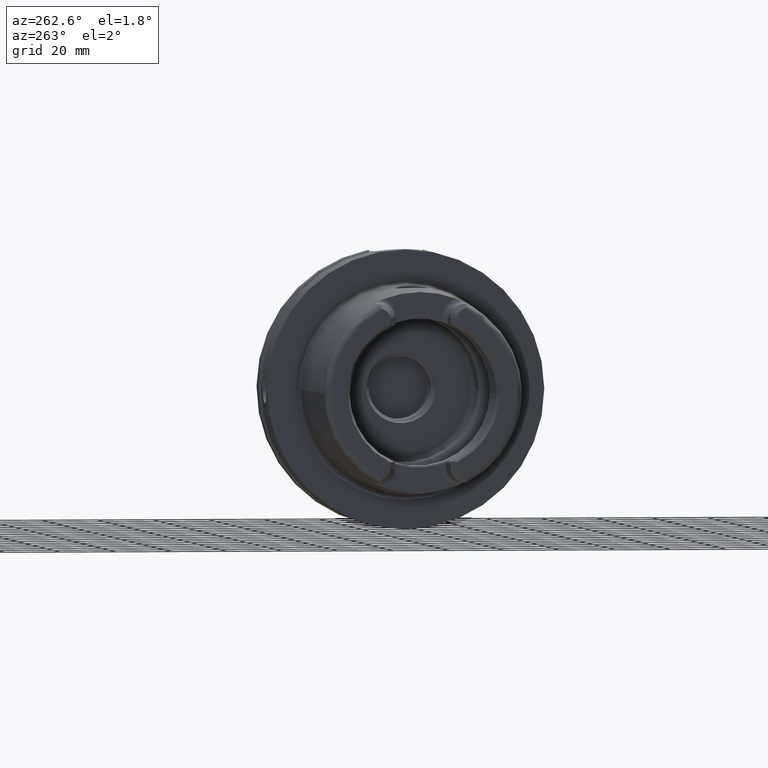
[diagram: clean part render]
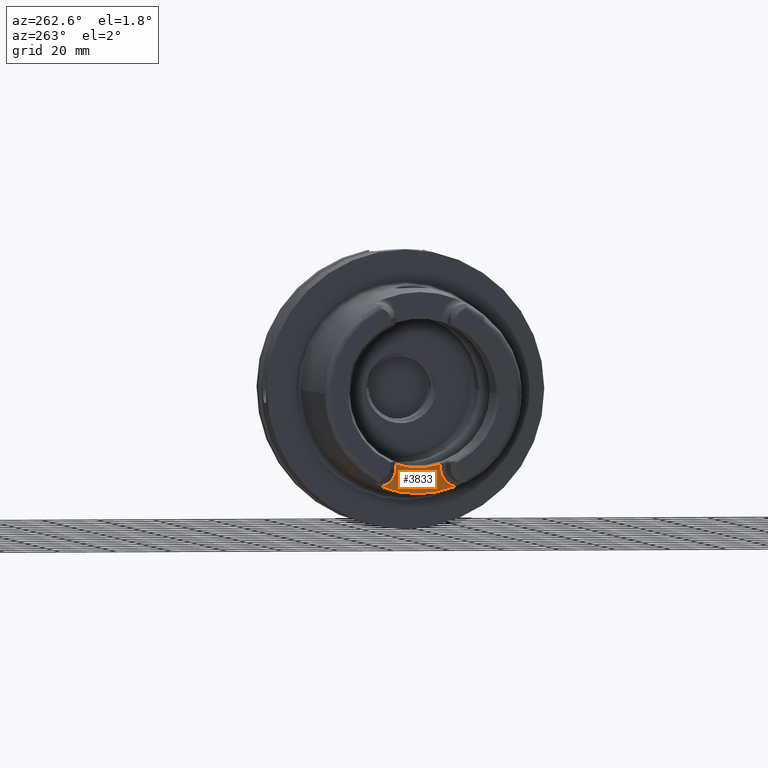
[diagram: same view with one face highlighted and labeled with its STEP entity id]
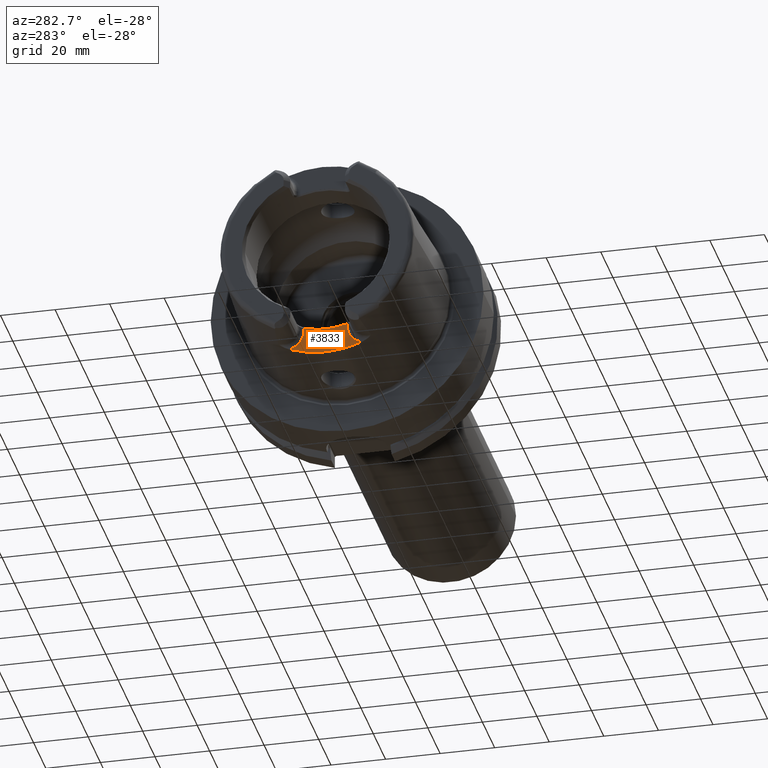
[diagram: same view with one face highlighted and labeled with its STEP entity id]
A machine part, auxiliary view. The second image highlights one B-rep face of the part: STEP entity #3833.
A second angle (auxiliary view) of the same face is appended — the face is thin or edge-on in the first view.
In plain terms, the highlighted planar face has unit normal (-1, 0, 0).
Its self-contained STEP definition (entity closure, byte-faithful):
#549=CARTESIAN_POINT('',(-3.5E1,0.E0,0.E0));
#550=DIRECTION('',(1.E0,0.E0,0.E0));
#551=DIRECTION('',(0.E0,-3.659355944317E-1,-9.306401779033E-1));
#552=AXIS2_PLACEMENT_3D('',#549,#550,#551);
#659=CARTESIAN_POINT('',(-3.5E1,1.326662904053E1,-3.373942900971E1));
#700=CARTESIAN_POINT('',(-3.5E1,-8.009999999994E0,-2.576044140549E1));
#701=CARTESIAN_POINT('',(-3.5E1,-7.269616392494E0,-2.599521452766E1));
#702=CARTESIAN_POINT('',(-3.5E1,-5.774680607735E0,-2.639793295020E1));
#703=CARTESIAN_POINT('',(-3.5E1,-3.481759859027E0,-2.680464578135E1));
#704=CARTESIAN_POINT('',(-3.5E1,-1.163574268408E0,-2.700848033442E1));
#705=CARTESIAN_POINT('',(-3.5E1,1.163574229636E0,-2.700848033529E1));
#706=CARTESIAN_POINT('',(-3.5E1,3.481759771636E0,-2.680464579107E1));
#707=CARTESIAN_POINT('',(-3.5E1,5.774680487919E0,-2.639793297771E1));
#708=CARTESIAN_POINT('',(-3.5E1,7.269616343063E0,-2.599521454333E1));
#709=CARTESIAN_POINT('',(-3.5E1,8.009999999993E0,-2.576044140549E1));
#711=DIRECTION('',(0.E0,-5.262912738182E-12,-1.E0));
#712=VECTOR('',#711,1.199558594507E0);
#713=CARTESIAN_POINT('',(-3.5E1,-8.009999999994E0,-2.576044140549E1));
#714=LINE('',#713,#712);
#715=CARTESIAN_POINT('',(-3.5E1,-1.501E1,-2.696E1));
#716=DIRECTION('',(-1.E0,0.E0,0.E0));
#717=DIRECTION('',(0.E0,1.E0,0.E0));
#718=AXIS2_PLACEMENT_3D('',#715,#716,#717);
#720=CARTESIAN_POINT('',(-3.5E1,1.501E1,-2.696E1));
#721=DIRECTION('',(-1.E0,0.E0,0.E0));
#722=DIRECTION('',(0.E0,-2.490529942106E-1,-9.684898585296E-1));
#723=AXIS2_PLACEMENT_3D('',#720,#721,#722);
#725=DIRECTION('',(0.E0,-6.865183864462E-12,1.E0));
#726=VECTOR('',#725,1.199558594503E0);
#727=CARTESIAN_POINT('',(-3.5E1,8.010000000001E0,-2.695999999999E1));
#728=LINE('',#727,#726);
#799=CARTESIAN_POINT('',(-3.5E1,-1.326662904053E1,-3.373942900971E1));
#2845=VERTEX_POINT('',#799);
#2846=VERTEX_POINT('',#659);
#2850=CARTESIAN_POINT('',(-3.5E1,-8.01E0,-2.696E1));
#2852=VERTEX_POINT('',#2850);
#2854=CARTESIAN_POINT('',(-3.5E1,8.01E0,-2.696E1));
#2856=VERTEX_POINT('',#2854);
#2862=VERTEX_POINT('',#700);
#2863=VERTEX_POINT('',#709);
#3818=CARTESIAN_POINT('',(-3.5E1,0.E0,0.E0));
#3819=DIRECTION('',(-1.E0,0.E0,0.E0));
#3820=DIRECTION('',(0.E0,0.E0,1.E0));
#3821=AXIS2_PLACEMENT_3D('',#3818,#3819,#3820);
#3822=PLANE('',#3821);
#3823=ORIENTED_EDGE('',*,*,#3809,.F.);
#3825=ORIENTED_EDGE('',*,*,#3824,.T.);
#3827=ORIENTED_EDGE('',*,*,#3826,.T.);
#3828=ORIENTED_EDGE('',*,*,#3657,.T.);
#3829=ORIENTED_EDGE('',*,*,#3715,.T.);
#3830=ORIENTED_EDGE('',*,*,#3727,.T.);
#3831=EDGE_LOOP('',(#3823,#3825,#3827,#3828,#3829,#3830));
#3832=FACE_OUTER_BOUND('',#3831,.F.);
#3833=ADVANCED_FACE('',(#3832),#3822,.T.);
#553=CIRCLE('',#552,3.6254E1);
#710=B_SPLINE_CURVE_WITH_KNOTS('',3,(#700,#701,#702,#703,#704,#705,#706,#707,
#708,#709),.UNSPECIFIED.,.F.,.F.,(4,1,1,1,1,1,1,4),(0.E0,1.428571428571E-1,
2.857142857143E-1,4.285714285714E-1,5.714285714286E-1,7.142857142857E-1,
8.571428571429E-1,1.E0),.UNSPECIFIED.);
#719=CIRCLE('',#718,7.E0);
#724=CIRCLE('',#723,7.E0);
#3657=EDGE_CURVE('',#2845,#2846,#553,.T.);
#3715=EDGE_CURVE('',#2846,#2856,#724,.T.);
#3727=EDGE_CURVE('',#2856,#2863,#728,.T.);
#3809=EDGE_CURVE('',#2862,#2863,#710,.T.);
#3824=EDGE_CURVE('',#2862,#2852,#714,.T.);
#3826=EDGE_CURVE('',#2852,#2845,#719,.T.);